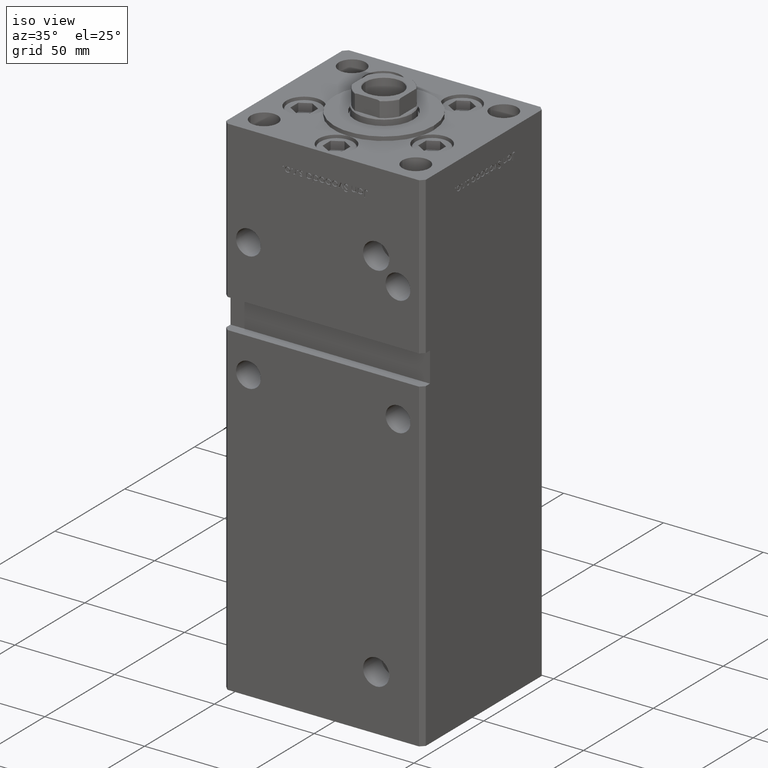
[diagram: clean part render]
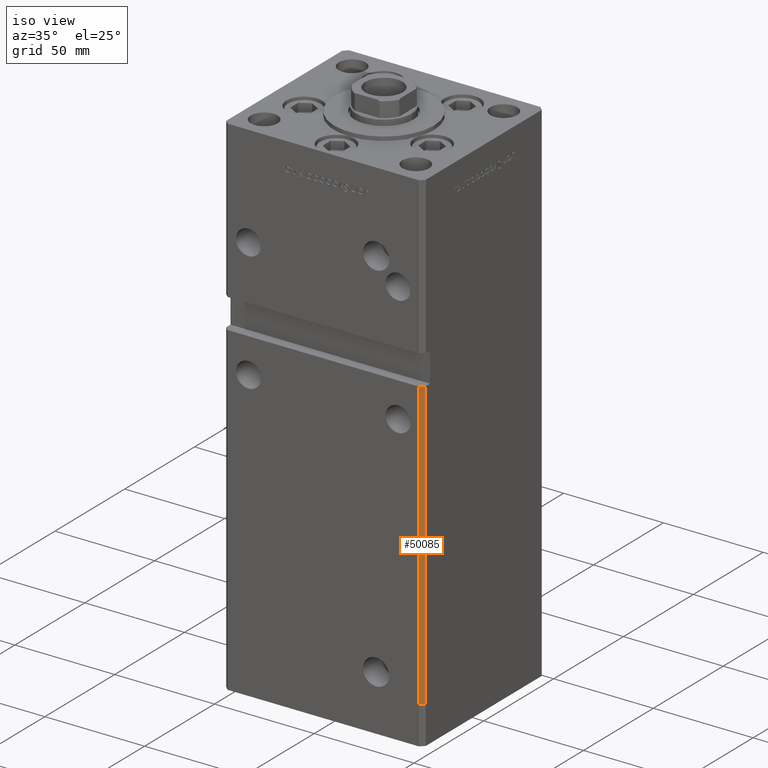
[diagram: same view with one face highlighted and labeled with its STEP entity id]
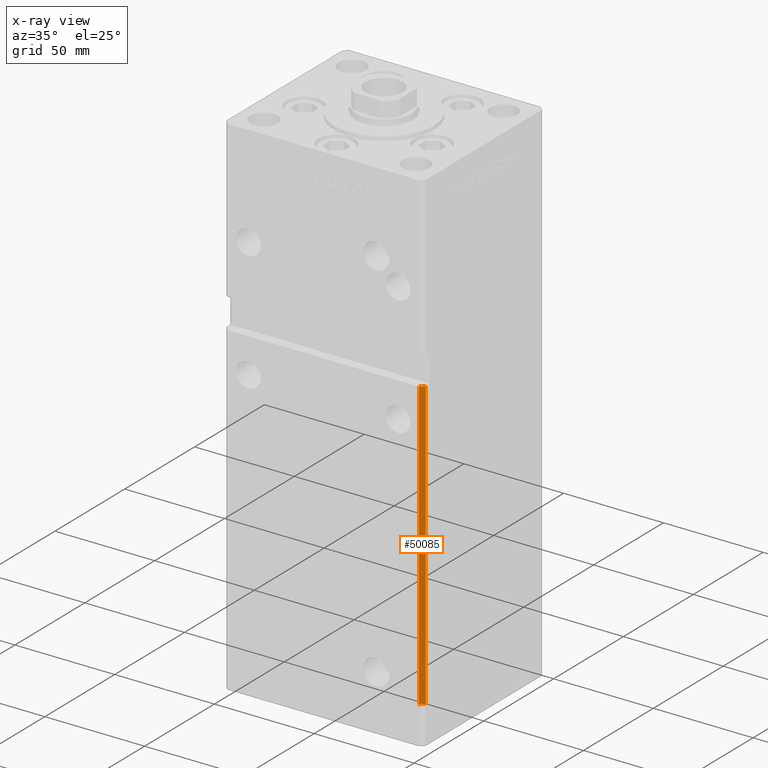
[diagram: x-ray of the same camera — body ghosted, the highlighted face saturated]
A machine part, iso view. The second image highlights one B-rep face of the part: STEP entity #50085.
The next image is the same camera in x-ray: the body ghosted, the highlighted face saturated — about 0% of this face is hidden behind the body in this view.
In plain terms, the highlighted planar face has unit normal (0.7071, -0.7071, 0).
Its self-contained STEP definition (entity closure, byte-faithful):
#973 = VERTEX_POINT ( 'NONE', #14721 ) ;
#1114 = ORIENTED_EDGE ( 'NONE', *, *, #31500, .F. ) ;
#3418 = LINE ( 'NONE', #19811, #38657 ) ;
#4062 = LINE ( 'NONE', #24473, #29059 ) ;
#4635 = CARTESIAN_POINT ( 'NONE',  ( 49.99999999999998579, -41.49999999999999289, 218.5000000000000000 ) ) ;
#5862 = CARTESIAN_POINT ( 'NONE',  ( 49.99999999999998579, -41.49999999999999289, 0.000000000000000000 ) ) ;
#6352 = CARTESIAN_POINT ( 'NONE',  ( 49.99999999999998579, -41.49999999999999289, 144.0000000000000284 ) ) ;
#6878 = ORIENTED_EDGE ( 'NONE', *, *, #20246, .F. ) ;
#7985 = DIRECTION ( 'NONE',  ( -0.000000000000000000, -0.000000000000000000, -1.000000000000000000 ) ) ;
#9392 = CARTESIAN_POINT ( 'NONE',  ( 49.99999999999998579, -41.49999999999999289, 218.5000000000000000 ) ) ;
#11570 = ORIENTED_EDGE ( 'NONE', *, *, #35286, .F. ) ;
#12164 = DIRECTION ( 'NONE',  ( 0.7071067811865474617, 0.7071067811865474617, 0.000000000000000000 ) ) ;
#12428 = DIRECTION ( 'NONE',  ( 0.7071067811865475727, -0.7071067811865475727, 0.000000000000000000 ) ) ;
#12966 = VECTOR ( 'NONE', #50785, 1000.000000000000000 ) ;
#14721 = CARTESIAN_POINT ( 'NONE',  ( 47.99999999999998579, -43.50000000000000000, 144.0000000000000284 ) ) ;
#14785 = AXIS2_PLACEMENT_3D ( 'NONE', #4635, #12428, #12164 ) ;
#15336 = DIRECTION ( 'NONE',  ( 0.7071067811865474617, 0.7071067811865474617, 0.000000000000000000 ) ) ;
#17010 = CARTESIAN_POINT ( 'NONE',  ( 47.99999999999998579, -43.50000000000000000, 0.000000000000000000 ) ) ;
#17049 = VERTEX_POINT ( 'NONE', #6352 ) ;
#18802 = EDGE_CURVE ( 'NONE', #973, #41176, #3418, .T. ) ;
#19712 = EDGE_LOOP ( 'NONE', ( #11570, #33968, #1114, #6878 ) ) ;
#19811 = CARTESIAN_POINT ( 'NONE',  ( 47.99999999999998579, -43.50000000000000000, 218.5000000000000000 ) ) ;
#20246 = EDGE_CURVE ( 'NONE', #17049, #28475, #26567, .T. ) ;
#24473 = CARTESIAN_POINT ( 'NONE',  ( 49.99999999999998579, -41.49999999999999289, 144.0000000000000284 ) ) ;
#26567 = LINE ( 'NONE', #9392, #12966 ) ;
#28475 = VERTEX_POINT ( 'NONE', #5862 ) ;
#29059 = VECTOR ( 'NONE', #15336, 1000.000000000000114 ) ;
#31500 = EDGE_CURVE ( 'NONE', #28475, #41176, #48131, .T. ) ;
#33968 = ORIENTED_EDGE ( 'NONE', *, *, #18802, .T. ) ;
#35286 = EDGE_CURVE ( 'NONE', #973, #17049, #4062, .T. ) ;
#37132 = FACE_OUTER_BOUND ( 'NONE', #19712, .T. ) ;
#38657 = VECTOR ( 'NONE', #7985, 1000.000000000000000 ) ;
#39529 = DIRECTION ( 'NONE',  ( -0.7071067811865474617, -0.7071067811865474617, 0.000000000000000000 ) ) ;
#40637 = PLANE ( 'NONE',  #14785 ) ;
#41176 = VERTEX_POINT ( 'NONE', #17010 ) ;
#44357 = CARTESIAN_POINT ( 'NONE',  ( 49.99999999999998579, -41.49999999999999289, 0.000000000000000000 ) ) ;
#48131 = LINE ( 'NONE', #44357, #49566 ) ;
#49566 = VECTOR ( 'NONE', #39529, 1000.000000000000114 ) ;
#50085 = ADVANCED_FACE ( 'NONE', ( #37132 ), #40637, .T. ) ;
#50785 = DIRECTION ( 'NONE',  ( -0.000000000000000000, -0.000000000000000000, -1.000000000000000000 ) ) ;